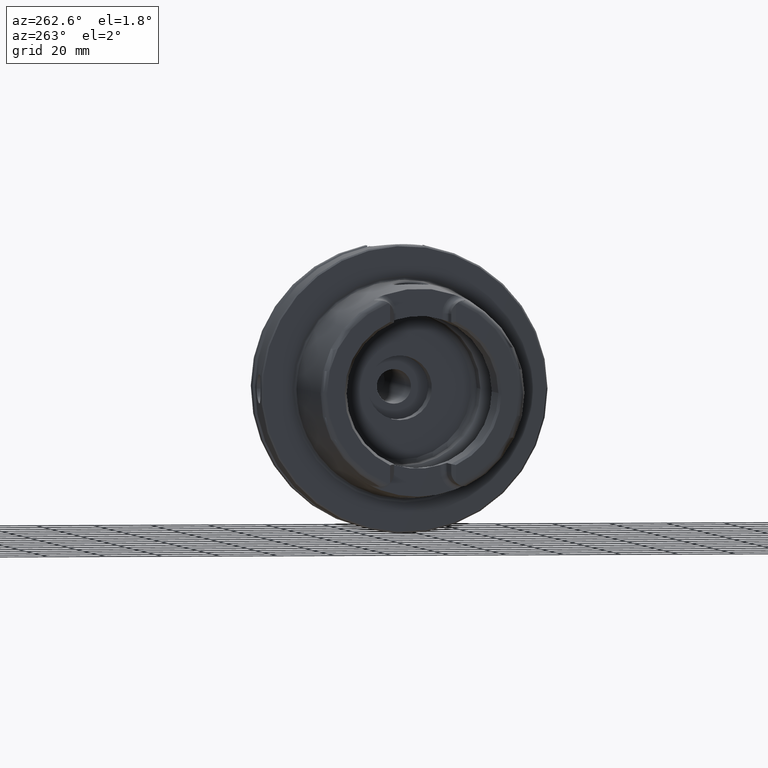
[diagram: clean part render]
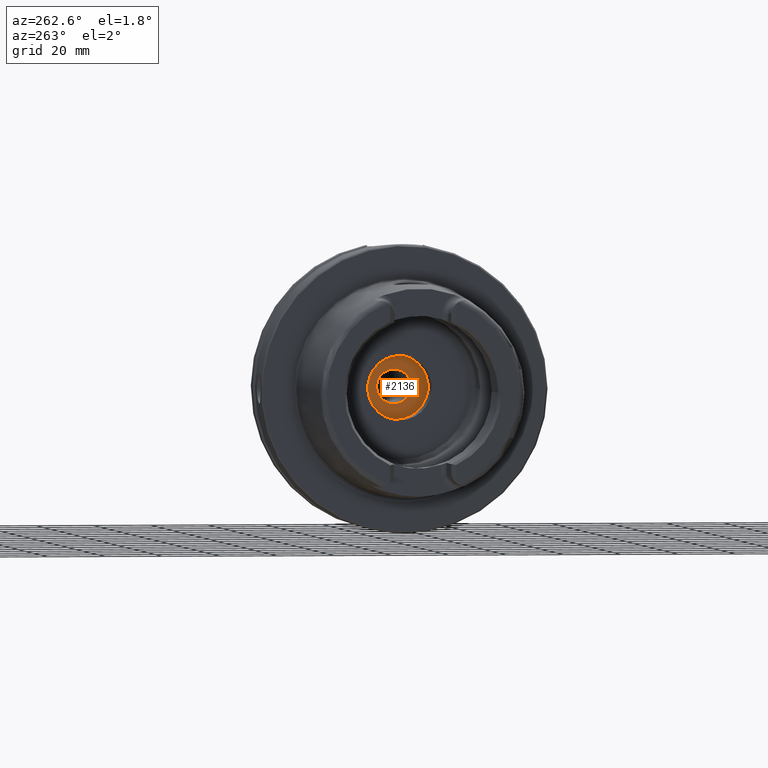
[diagram: same view with one face highlighted and labeled with its STEP entity id]
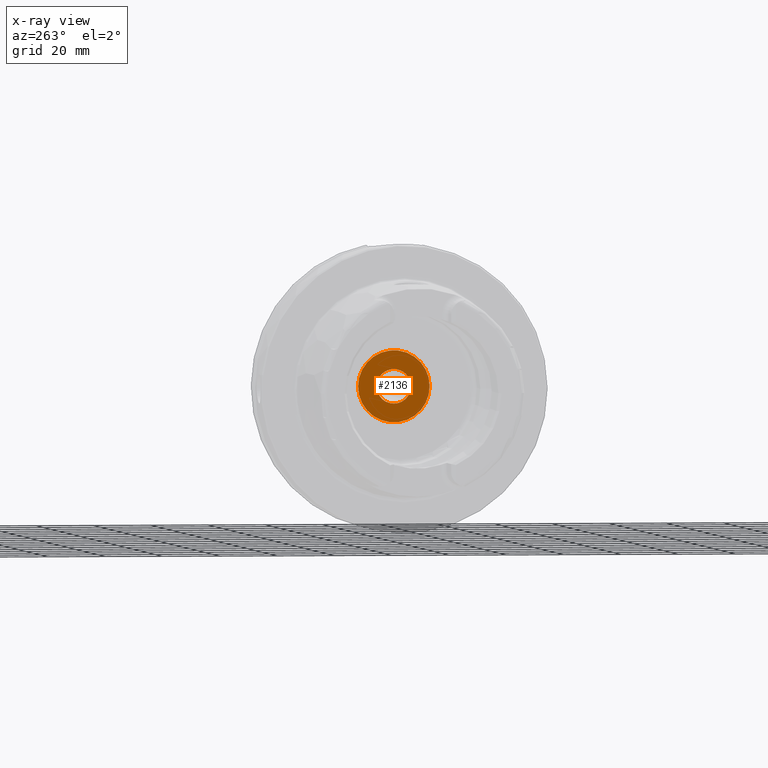
[diagram: x-ray of the same camera — body ghosted, the highlighted face saturated]
A machine part, auxiliary view. The second image highlights one B-rep face of the part: STEP entity #2136.
The next image is the same camera in x-ray: the body ghosted, the highlighted face saturated — about 0% of this face is hidden behind the body in this view.
In plain terms, the highlighted planar face has unit normal (1, 0, 0).
Its self-contained STEP definition (entity closure, byte-faithful):
#94=FACE_BOUND('',#447,.T.);
#130=PLANE('',#2407);
#314=FACE_OUTER_BOUND('',#446,.T.);
#446=EDGE_LOOP('',(#1929));
#447=EDGE_LOOP('',(#1930));
#717=CIRCLE('',#2230,6.);
#804=CIRCLE('',#2408,12.5);
#864=VERTEX_POINT('',#3209);
#1025=VERTEX_POINT('',#4579);
#1089=EDGE_CURVE('',#864,#864,#717,.T.);
#1335=EDGE_CURVE('',#1025,#1025,#804,.T.);
#1929=ORIENTED_EDGE('',*,*,#1335,.T.);
#1930=ORIENTED_EDGE('',*,*,#1089,.T.);
#2136=ADVANCED_FACE('',(#314,#94),#130,.F.);
#2230=AXIS2_PLACEMENT_3D('',#3210,#2571,#2572);
#2407=AXIS2_PLACEMENT_3D('',#4578,#3008,#3009);
#2408=AXIS2_PLACEMENT_3D('',#4580,#3010,#3011);
#2571=DIRECTION('center_axis',(1.,0.,0.));
#2572=DIRECTION('ref_axis',(0.,-1.06221930374718E-16,1.));
#3008=DIRECTION('center_axis',(1.,0.,0.));
#3009=DIRECTION('ref_axis',(0.,0.,-1.));
#3010=DIRECTION('center_axis',(-1.,0.,0.));
#3011=DIRECTION('ref_axis',(0.,0.,1.));
#3209=CARTESIAN_POINT('',(28.5,1.37211966173672E-15,-6.));
#3210=CARTESIAN_POINT('Origin',(28.5,0.,0.));
#4578=CARTESIAN_POINT('Origin',(28.5,12.5,0.));
#4579=CARTESIAN_POINT('',(28.5,-12.5,1.53080849893419E-15));
#4580=CARTESIAN_POINT('Origin',(28.5,0.,0.));